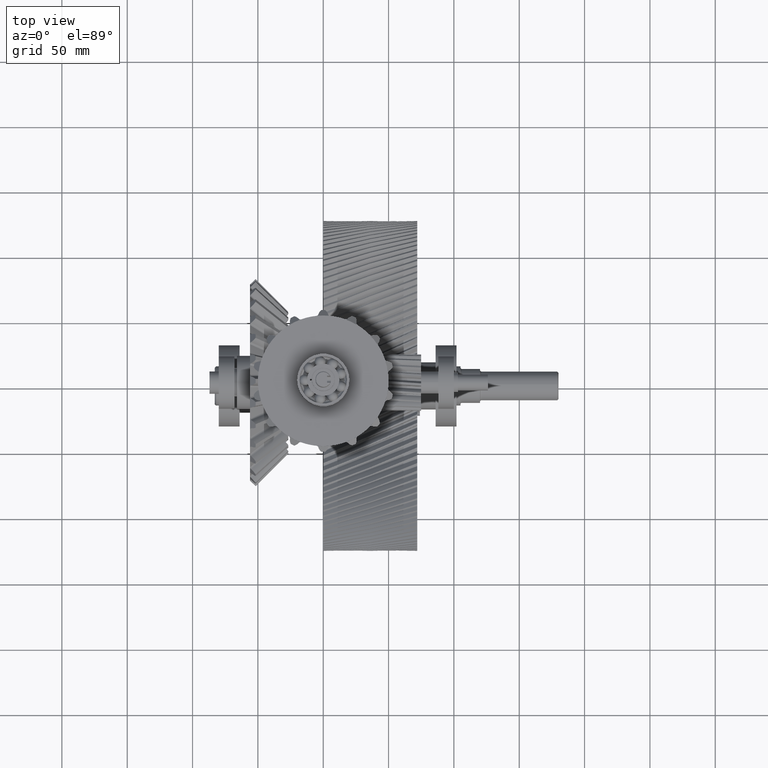
[diagram: clean part render]
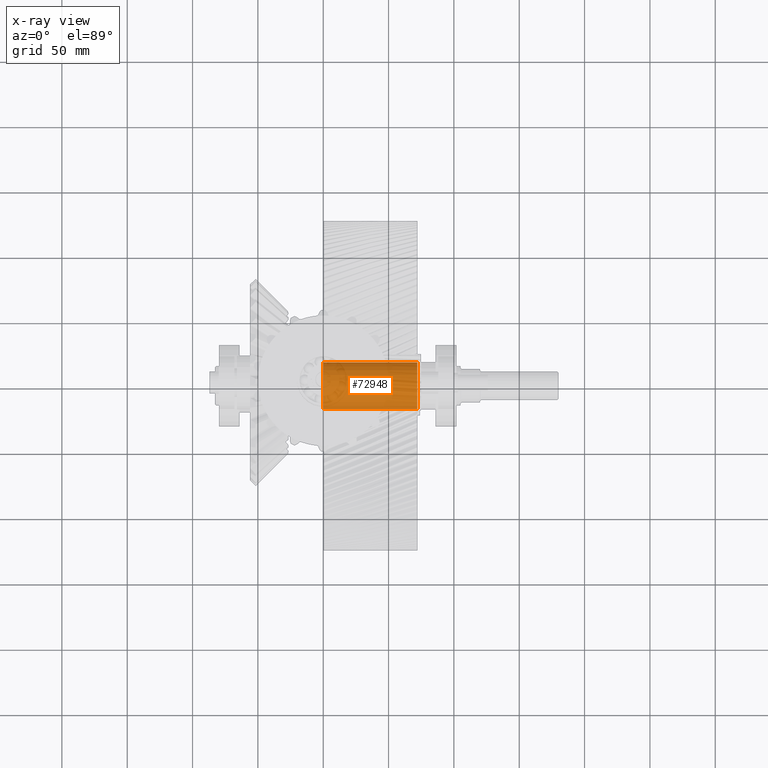
[diagram: x-ray — body ghosted, one internal face saturated and labeled with its STEP entity id]
A machine part, top view, then the same camera in x-ray: the body is ghosted and one INTERNAL B-rep face — a face not visible from any outside direction — is saturated and labeled: STEP entity #72948.
In plain terms, the highlighted cylindrical surface (edge-blend (fillet) strip) has radius 18 mm, axis along (-1, 0, 0).
Its self-contained STEP definition (entity closure, byte-faithful):
#45671=CARTESIAN_POINT('',(0.E0,0.E0,-7.195169453850E1));
#45672=DIRECTION('',(0.E0,0.E0,1.E0));
#45673=DIRECTION('',(-9.606453592106E-1,-2.777777777778E-1,0.E0));
#45674=AXIS2_PLACEMENT_3D('',#45671,#45672,#45673);
#45676=DIRECTION('',(0.E0,0.E0,1.E0));
#45677=VECTOR('',#45676,7.195169453850E1);
#45678=CARTESIAN_POINT('',(-1.729161646579E1,5.E0,-7.195169453850E1));
#45679=LINE('',#45678,#45677);
#45680=CARTESIAN_POINT('',(0.E0,0.E0,0.E0));
#45681=DIRECTION('',(0.E0,0.E0,-1.E0));
#45682=DIRECTION('',(-9.606453592106E-1,2.777777777778E-1,0.E0));
#45683=AXIS2_PLACEMENT_3D('',#45680,#45681,#45682);
#45685=DIRECTION('',(0.E0,0.E0,1.E0));
#45686=VECTOR('',#45685,7.195169453850E1);
#45687=CARTESIAN_POINT('',(-1.729161646579E1,-5.E0,-7.195169453850E1));
#45688=LINE('',#45687,#45686);
#48193=CARTESIAN_POINT('',(-1.729161646579E1,-5.E0,0.E0));
#48195=VERTEX_POINT('',#48193);
#48196=CARTESIAN_POINT('',(-1.729161646579E1,5.E0,0.E0));
#48198=VERTEX_POINT('',#48196);
#48201=CARTESIAN_POINT('',(-1.729161646579E1,-5.E0,-7.195169453850E1));
#48203=VERTEX_POINT('',#48201);
#48204=CARTESIAN_POINT('',(-1.729161646579E1,5.E0,-7.195169453850E1));
#48206=VERTEX_POINT('',#48204);
#72937=CARTESIAN_POINT('',(0.E0,0.E0,0.E0));
#72938=DIRECTION('',(0.E0,0.E0,1.E0));
#72939=DIRECTION('',(1.E0,0.E0,0.E0));
#72940=AXIS2_PLACEMENT_3D('',#72937,#72938,#72939);
#72941=CYLINDRICAL_SURFACE('',#72940,1.8E1);
#72942=ORIENTED_EDGE('',*,*,#51325,.T.);
#72943=ORIENTED_EDGE('',*,*,#72930,.T.);
#72944=ORIENTED_EDGE('',*,*,#49675,.T.);
#72945=ORIENTED_EDGE('',*,*,#72906,.F.);
#72946=EDGE_LOOP('',(#72942,#72943,#72944,#72945));
#72947=FACE_OUTER_BOUND('',#72946,.F.);
#72948=ADVANCED_FACE('',(#72947),#72941,.F.);
#45675=CIRCLE('',#45674,1.8E1);
#45684=CIRCLE('',#45683,1.8E1);
#49675=EDGE_CURVE('',#48198,#48195,#45684,.T.);
#51325=EDGE_CURVE('',#48203,#48206,#45675,.T.);
#72906=EDGE_CURVE('',#48203,#48195,#45688,.T.);
#72930=EDGE_CURVE('',#48206,#48198,#45679,.T.);